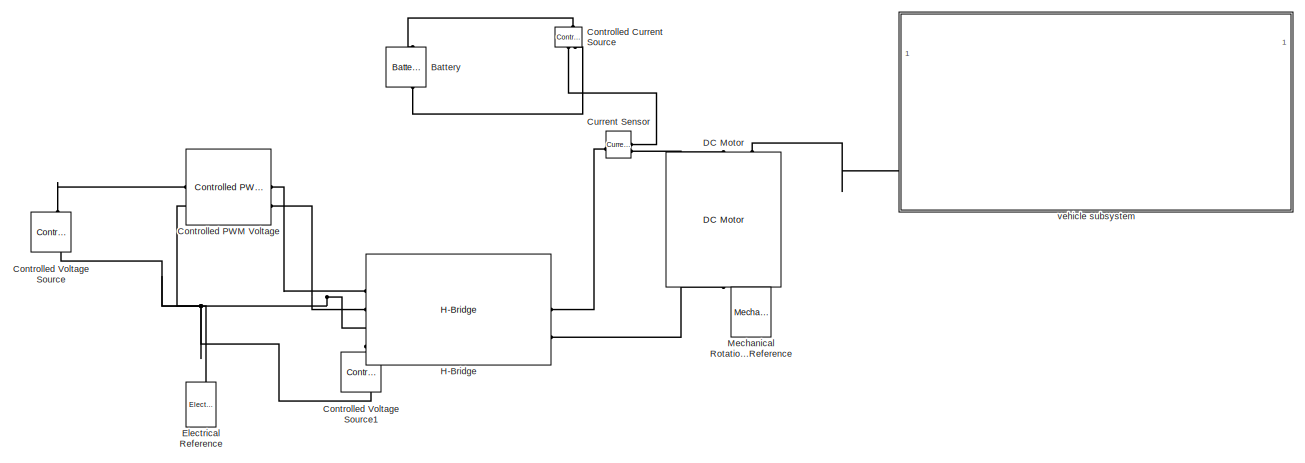
[diagram: root canvas - part 1/2, most of the canvas]
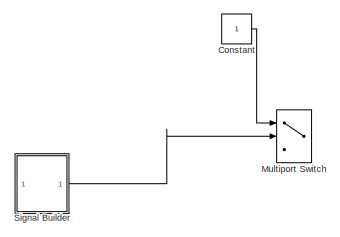
[diagram: root canvas - part 2/2, middle left region]
MODEL slx_d94f09849a52
KIND model
CONFIG AbsTol = auto
CONFIG EnableMultiTasking = off
CONFIG FixedStep = auto
CONFIG MaxStep = auto
CONFIG MinStep = auto
CONFIG RelTol = 1e-3
CONFIG SampleTimeConstraint = Unconstrained
CONFIG SolverName = VariableStepAuto
CONFIG StartTime = 0.0
CONFIG StopTime = 10.0
BLOCK [Reference] Battery  REF=batteryecm_lib/Battery
  NameLocation = right
  SourceBlock = batteryecm_lib/Battery
  SourceType = Battery
BLOCK [Constant] Constant
BLOCK [Reference] Controlled Current Source  REF=fl_lib/Electrical/Electrical Sources/Controlled Current
Source
  NameLocation = right
  SourceBlock = fl_lib/Electrical/Electrical Sources/Controlled Current\nSource
  SourceType = Controlled Current\nSource
BLOCK [Reference] Controlled PWM Voltage  REF=ee_lib/Integrated Circuits/Controlled PWM
Voltage
  SourceBlock = ee_lib/Integrated Circuits/Controlled PWM\nVoltage
  SourceType = Controlled PWM\nVoltage
BLOCK [Reference] Controlled Voltage Source  REF=fl_lib/Electrical/Electrical Sources/Controlled Voltage
Source
  NameLocation = right
  SourceBlock = fl_lib/Electrical/Electrical Sources/Controlled Voltage\nSource
  SourceType = Controlled Voltage\nSource
BLOCK [Reference] Controlled Voltage Source1  REF=fl_lib/Electrical/Electrical Sources/Controlled Voltage
Source
  NameLocation = right
  SourceBlock = fl_lib/Electrical/Electrical Sources/Controlled Voltage\nSource
  SourceType = Controlled Voltage\nSource
BLOCK [Reference] Current Sensor  REF=fl_lib/Electrical/Electrical Sensors/Current Sensor
  SourceBlock = fl_lib/Electrical/Electrical Sensors/Current Sensor
  SourceType = Current Sensor
BLOCK [Reference] DC Motor  REF=ee_lib/Electromechanical/Brushed Motors/DC Motor
  NameLocation = right
  SourceBlock = ee_lib/Electromechanical/Brushed Motors/DC Motor
  SourceType = DC Motor
BLOCK [Reference] Electrical Reference  REF=fl_lib/Electrical/Electrical Elements/Electrical Reference
  NameLocation = right
  SourceBlock = fl_lib/Electrical/Electrical Elements/Electrical Reference
  SourceType = Electrical Reference
BLOCK [Reference] H-Bridge  REF=ee_lib/Semiconductors &
Converters/Converters/H-Bridge
  SourceBlock = ee_lib/Semiconductors &\nConverters/Converters/H-Bridge
  SourceType = H-Bridge
BLOCK [Reference] Mechanical Rotational Reference  REF=fl_lib/Mechanical/Rotational Elements/Mechanical
Rotational Reference
  NameLocation = right
  SourceBlock = fl_lib/Mechanical/Rotational Elements/Mechanical\nRotational Reference
  SourceType = Mechanical\nRotational Reference
BLOCK [MultiPortSwitch] Multiport Switch
  InputSameDT = off
  SaturateOnIntegerOverflow = off
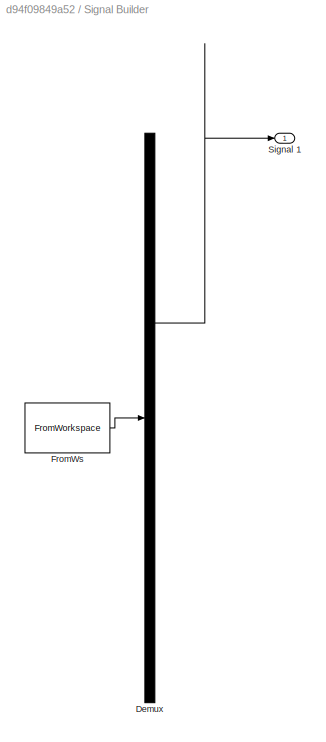
BLOCK [SubSystem] Signal Builder
  ClipboardFcn = sigbuilder_block('clipboard');
  CloseFcn = sigbuilder_block('close');
  ContinueFcn = sigbuilder_block('continue');
  CopyFcn = sigbuilder_block('copy');
  DeleteFcn = sigbuilder_block('delete');
  LoadFcn = sigbuilder_block('load');
  MaskHideContents = on
  ModelCloseFcn = sigbuilder_block('modelClose');
  NameChangeFcn = sigbuilder_block('namechange');
  OpenFcn = sigbuilder_block('open',[441.455 193.455 550.545 398.545 ]);
  PauseFcn = sigbuilder_block('pause');
  PreSaveFcn = sigbuilder_block('preSave');
  StartFcn = sigbuilder_block('start');
  StopFcn = sigbuilder_block('stop');
  Tag = STV Subsys
BLOCK [Demux] Signal Builder/Demux
  DisplayOption = none
  Outputs = 1
  Tag = STV Demux
BLOCK [FromWorkspace] Signal Builder/FromWs
  Tag = STV FromWs
  VariableName = tuvar
BLOCK [Outport] Signal Builder/Signal 1
  Tag = STV Outport
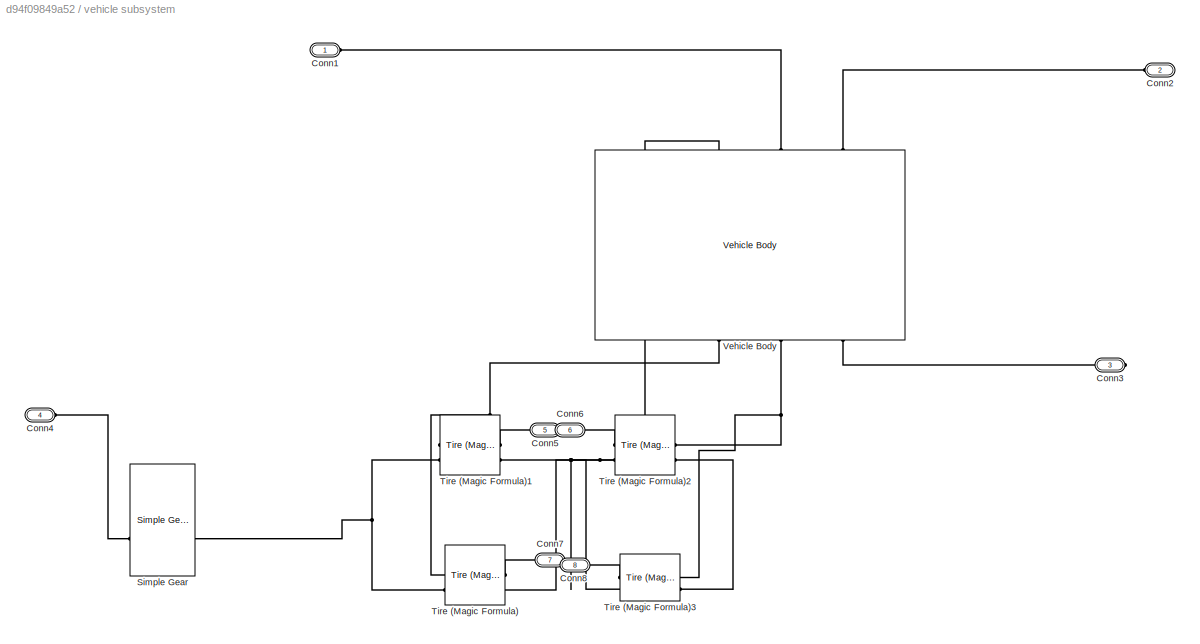
BLOCK [SubSystem] vehicle subsystem
BLOCK [PMIOPort] vehicle subsystem/Conn1
  Side = Left
BLOCK [PMIOPort] vehicle subsystem/Conn2
  Port = 2
  Side = Left
BLOCK [PMIOPort] vehicle subsystem/Conn3
  Port = 3
  Side = Right
BLOCK [PMIOPort] vehicle subsystem/Conn4
  Port = 4
  Side = Left
BLOCK [PMIOPort] vehicle subsystem/Conn5
  Port = 5
  Side = Right
BLOCK [PMIOPort] vehicle subsystem/Conn6
  Port = 6
  Side = Right
BLOCK [PMIOPort] vehicle subsystem/Conn7
  Port = 7
  Side = Right
BLOCK [PMIOPort] vehicle subsystem/Conn8
  Port = 8
  Side = Right
BLOCK [Reference] vehicle subsystem/Simple Gear  REF=sdl_lib/Gears/Simple Gear
  SourceBlock = sdl_lib/Gears/Simple Gear
  SourceType = Simple Gear
BLOCK [Reference] vehicle subsystem/Tire (Magic Formula)  REF=sdl_lib/Tires & Vehicles/Tire (Magic Formula)
  SourceBlock = sdl_lib/Tires & Vehicles/Tire (Magic Formula)
  SourceType = Tire (Magic Formula)
BLOCK [Reference] vehicle subsystem/Tire (Magic Formula)1  REF=sdl_lib/Tires & Vehicles/Tire (Magic Formula)
  SourceBlock = sdl_lib/Tires & Vehicles/Tire (Magic Formula)
  SourceType = Tire (Magic Formula)
BLOCK [Reference] vehicle subsystem/Tire (Magic Formula)2  REF=sdl_lib/Tires & Vehicles/Tire (Magic Formula)
  SourceBlock = sdl_lib/Tires & Vehicles/Tire (Magic Formula)
  SourceType = Tire (Magic Formula)
BLOCK [Reference] vehicle subsystem/Tire (Magic Formula)3  REF=sdl_lib/Tires & Vehicles/Tire (Magic Formula)
  SourceBlock = sdl_lib/Tires & Vehicles/Tire (Magic Formula)
  SourceType = Tire (Magic Formula)
BLOCK [Reference] vehicle subsystem/Vehicle Body  REF=sdl_lib/Tires & Vehicles/Vehicle Body
  NameLocation = right
  SourceBlock = sdl_lib/Tires & Vehicles/Vehicle Body
  SourceType = Vehicle Body
LINE Constant:1 -> Multiport Switch:1
LINE Signal Builder:1 -> Multiport Switch:2
PLINE Battery:LConn1 -- Controlled Current Source:LConn1
PLINE Battery:RConn1 -- Controlled Current Source:RConn2
PLINE Controlled Current Source:RConn1 -- Current Sensor:RConn1
PLINE Controlled PWM Voltage:LConn1 -- Controlled Voltage Source:LConn1
PNET net1: Controlled PWM Voltage:LConn2 -- Controlled PWM Voltage:RConn2 -- Controlled Voltage Source1:RConn2 -- Controlled Voltage Source:RConn2 -- Electrical Reference:LConn1 -- H-Bridge:LConn2 -- H-Bridge:LConn3
PLINE Controlled PWM Voltage:RConn1 -- H-Bridge:LConn1
PLINE Controlled Voltage Source1:LConn1 -- H-Bridge:LConn4
PLINE Current Sensor:LConn1 -- H-Bridge:RConn1
PLINE Current Sensor:RConn2 -- DC Motor:LConn1
PLINE DC Motor:LConn2 -- vehicle subsystem:LConn3
PLINE DC Motor:RConn1 -- H-Bridge:RConn2
PLINE DC Motor:RConn2 -- Mechanical Rotational Reference:LConn1
PLINE vehicle subsystem/Conn1:RConn1 -- vehicle subsystem/Vehicle Body:LConn2
PLINE vehicle subsystem/Conn2:RConn1 -- vehicle subsystem/Vehicle Body:LConn3
PLINE vehicle subsystem/Conn3:RConn1 -- vehicle subsystem/Vehicle Body:RConn3
PLINE vehicle subsystem/Conn4:RConn1 -- vehicle subsystem/Simple Gear:LConn1
PLINE vehicle subsystem/Conn5:RConn1 -- vehicle subsystem/Tire (Magic Formula)1:RConn1
PLINE vehicle subsystem/Conn6:RConn1 -- vehicle subsystem/Tire (Magic Formula)2:RConn1
PLINE vehicle subsystem/Conn7:RConn1 -- vehicle subsystem/Tire (Magic Formula):RConn1
PLINE vehicle subsystem/Conn8:RConn1 -- vehicle subsystem/Tire (Magic Formula)3:RConn1
PNET net2: vehicle subsystem/Simple Gear:RConn1 -- vehicle subsystem/Tire (Magic Formula)1:LConn2 -- vehicle subsystem/Tire (Magic Formula):LConn2
PNET net3: vehicle subsystem/Tire (Magic Formula)1:LConn1 -- vehicle subsystem/Tire (Magic Formula):LConn1 -- vehicle subsystem/Vehicle Body:RConn1
PNET net4: vehicle subsystem/Tire (Magic Formula)1:RConn2 -- vehicle subsystem/Tire (Magic Formula)2:RConn2 -- vehicle subsystem/Tire (Magic Formula)3:RConn2 -- vehicle subsystem/Tire (Magic Formula):RConn2 -- vehicle subsystem/Vehicle Body:LConn1
PNET net5: vehicle subsystem/Tire (Magic Formula)2:LConn1 -- vehicle subsystem/Tire (Magic Formula)3:LConn1 -- vehicle subsystem/Vehicle Body:RConn2
PLINE vehicle subsystem/Tire (Magic Formula)2:LConn2 -- vehicle subsystem/Tire (Magic Formula)3:LConn2
note: PNET lines group multi-terminal physical nets as a canonical sorted terminal list (undirected conserving connections); 2-terminal nets keep the pairwise PLINE form
